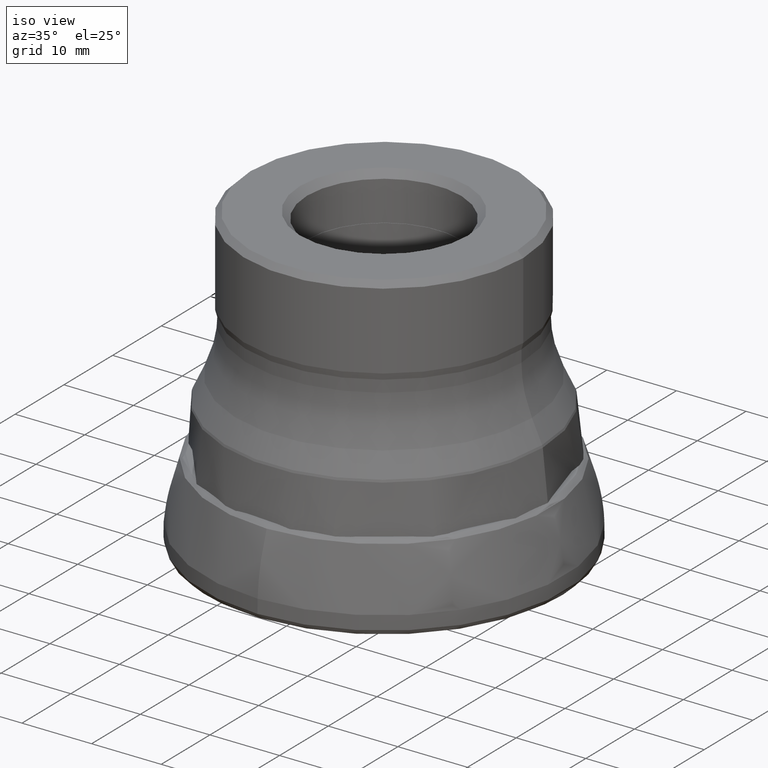
[diagram: clean part render]
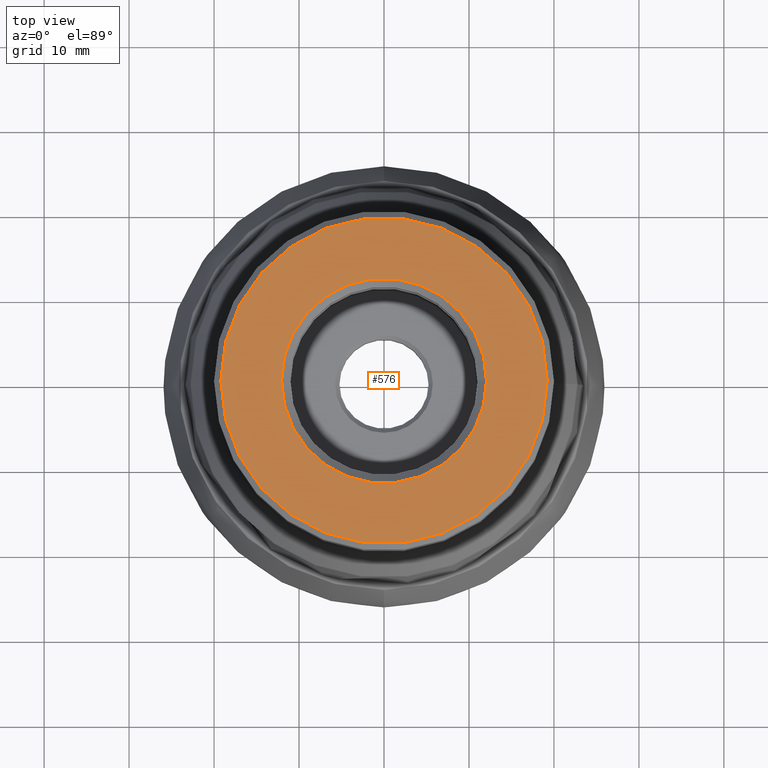
[diagram: tour spotlight — one face highlighted and labeled with its STEP entity id]
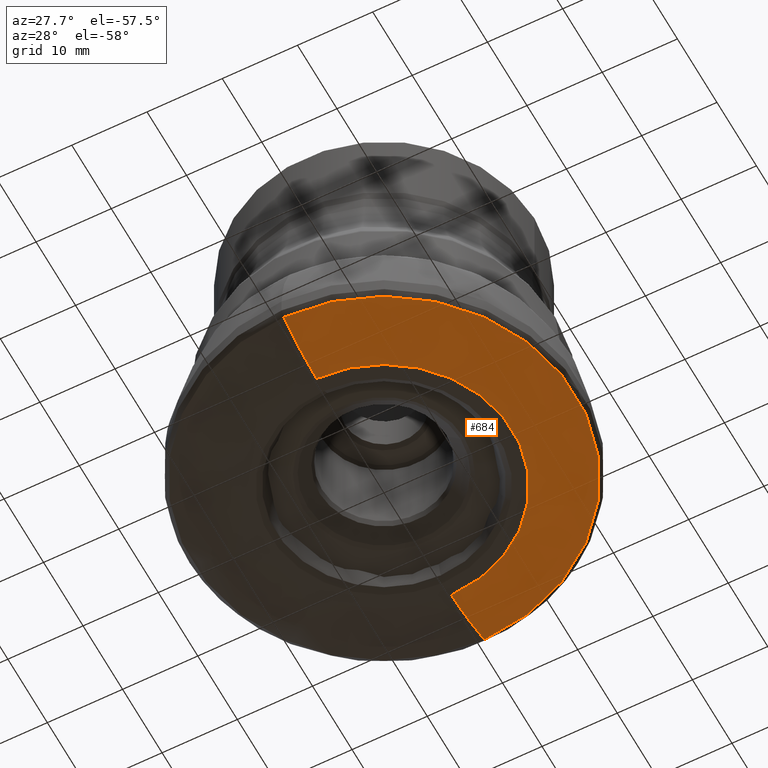
[diagram: tour spotlight — one face highlighted and labeled with its STEP entity id]
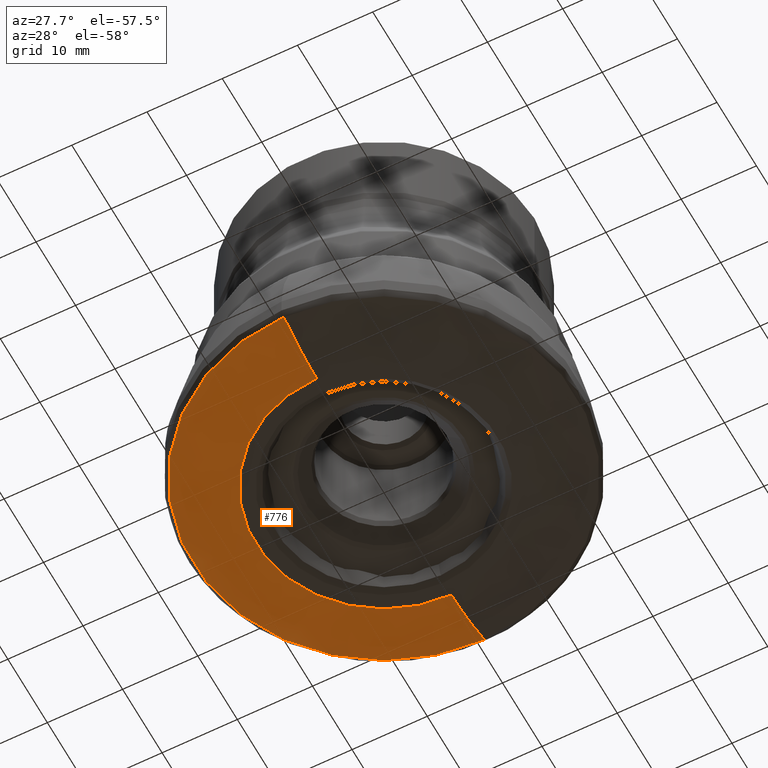
[diagram: tour spotlight — one face highlighted and labeled with its STEP entity id]
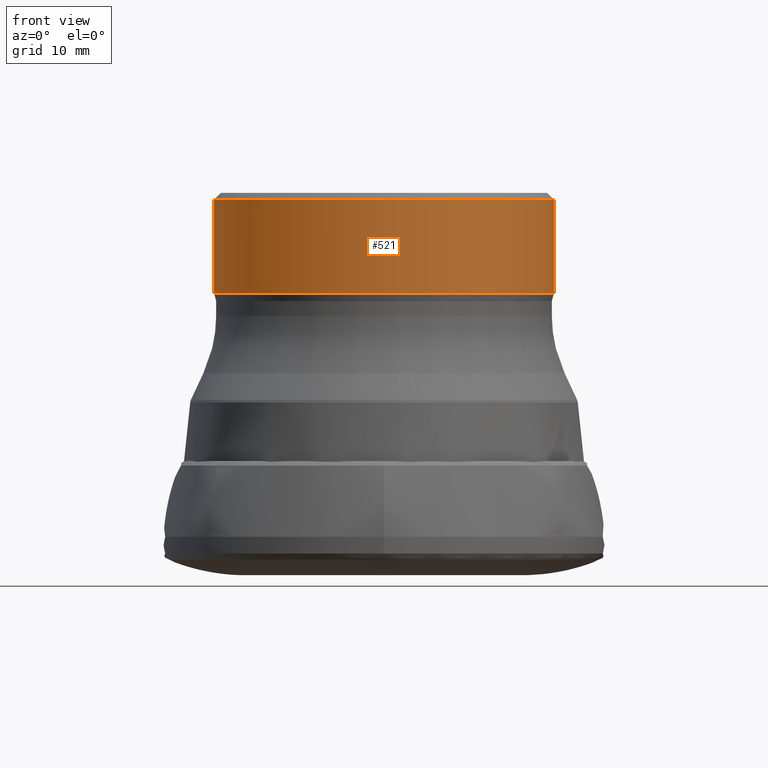
[diagram: tour spotlight — one face highlighted and labeled with its STEP entity id]
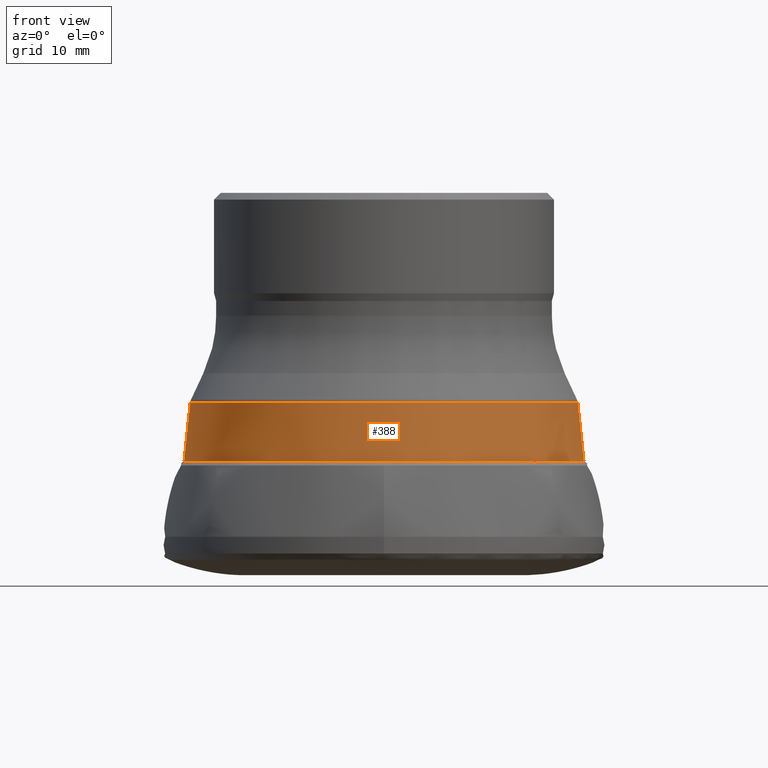
[diagram: tour spotlight — one face highlighted and labeled with its STEP entity id]
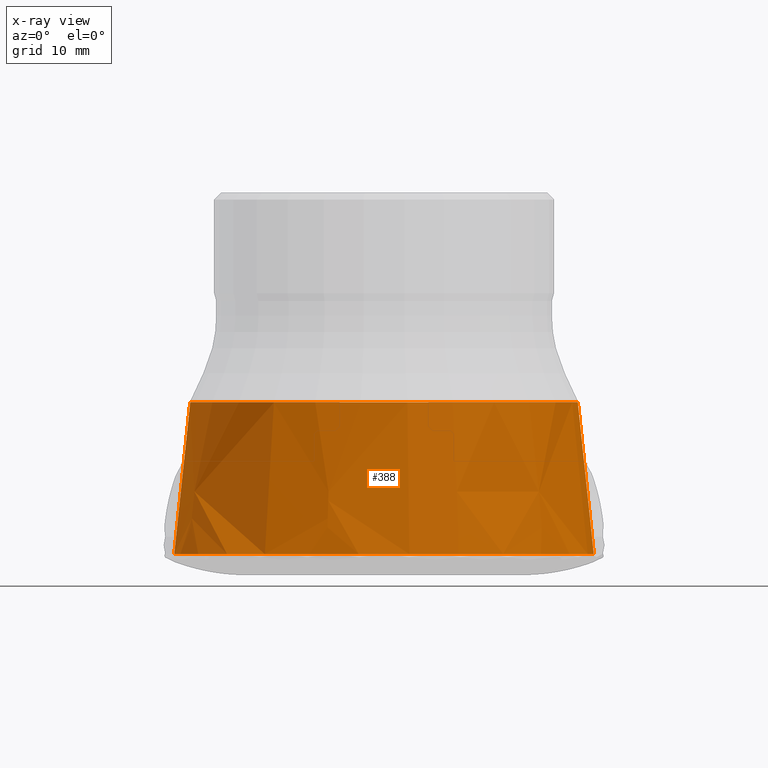
[diagram: x-ray of the same camera — body ghosted, this tour face saturated]
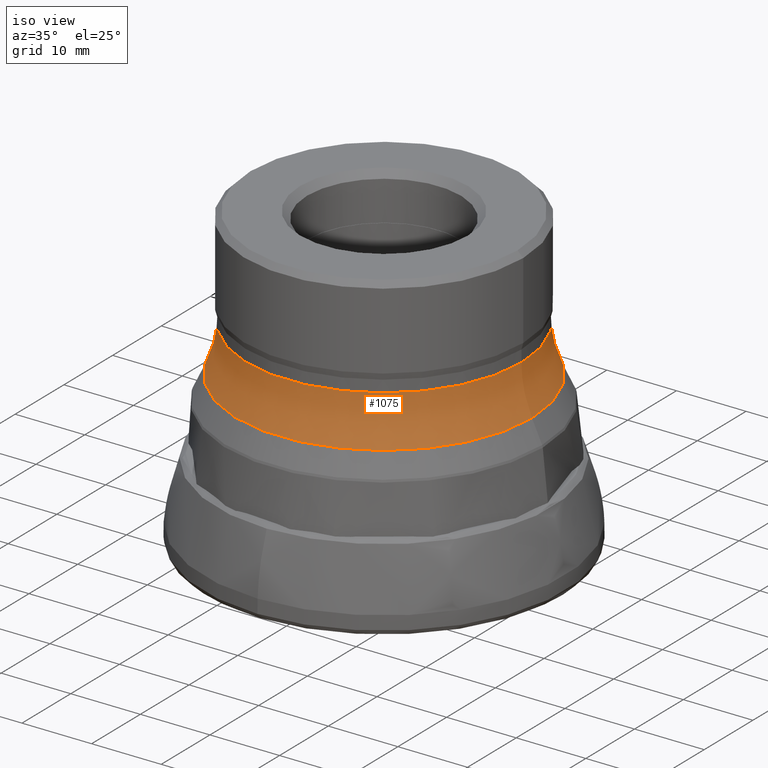
[diagram: tour spotlight — one face highlighted and labeled with its STEP entity id]
A machine part: a face-by-face anatomy tour. The part has 54 B-rep faces; the first image is the clean iso view, then the 6 largest visible faces are spotlighted one at a time (largest first), each with its STEP entity span.

Face 1 — top view, entity #576. In plain terms, the highlighted planar face has unit normal (0, 0, -1).
Definition (entity closure, byte-faithful):
#19 = FACE_OUTER_BOUND ( 'NONE', #937, .T. ) ;
#227 = CIRCLE ( 'NONE', #1157, 19.20000000000002400 ) ;
#475 = FACE_BOUND ( 'NONE', #1550, .T. ) ;
#576 = ADVANCED_FACE ( 'NONE', ( #19, #475 ), #2736, .F. ) ;
#672 = CARTESIAN_POINT ( 'NONE',  ( -6.880664631269963700, -17.92474418874622100, -45.00000000002415100 ) ) ;
#768 = VERTEX_POINT ( 'NONE', #2556 ) ;
#820 = DIRECTION ( 'NONE',  ( 1.000000000000000000, 0.0000000000000000000, 0.0000000000000000000 ) ) ;
#853 = AXIS2_PLACEMENT_3D ( 'NONE', #973, #2617, #1068 ) ;
#937 = EDGE_LOOP ( 'NONE', ( #1434 ) ) ;
#960 = CIRCLE ( 'NONE', #853, 12.06000000000001100 ) ;
#973 = CARTESIAN_POINT ( 'NONE',  ( 0.0000000000000000000, 0.0000000000000000000, -45.00000000001863800 ) ) ;
#1068 = DIRECTION ( 'NONE',  ( 1.000000000000000000, 0.0000000000000000000, 0.0000000000000000000 ) ) ;
#1146 = ORIENTED_EDGE ( 'NONE', *, *, #1321, .T. ) ;
#1157 = AXIS2_PLACEMENT_3D ( 'NONE', #2096, #1992, #820 ) ;
#1158 = DIRECTION ( 'NONE',  ( 0.0000000000000000000, -0.0000000000000000000, 1.000000000000000000 ) ) ;
#1294 = VERTEX_POINT ( 'NONE', #2402 ) ;
#1321 = EDGE_CURVE ( 'NONE', #768, #768, #960, .T. ) ;
#1434 = ORIENTED_EDGE ( 'NONE', *, *, #1830, .F. ) ;
#1550 = EDGE_LOOP ( 'NONE', ( #1146 ) ) ;
#1830 = EDGE_CURVE ( 'NONE', #1294, #1294, #227, .T. ) ;
#1926 = DIRECTION ( 'NONE',  ( 1.000000000000000000, 0.0000000000000000000, 0.0000000000000000000 ) ) ;
#1992 = DIRECTION ( 'NONE',  ( -0.0000000000000000000, -0.0000000000000000000, 1.000000000000000000 ) ) ;
#2096 = CARTESIAN_POINT ( 'NONE',  ( 0.0000000000000000000, 0.0000000000000000000, -45.00000000002967200 ) ) ;
#2402 = CARTESIAN_POINT ( 'NONE',  ( 19.20000000000002400, 0.0000000000000000000, -45.00000000002967200 ) ) ;
#2556 = CARTESIAN_POINT ( 'NONE',  ( 12.06000000000001100, 0.0000000000000000000, -45.00000000001863800 ) ) ;
#2617 = DIRECTION ( 'NONE',  ( -0.0000000000000000000, -0.0000000000000000000, 1.000000000000000000 ) ) ;
#2736 = PLANE ( 'NONE',  #2829 ) ;
#2829 = AXIS2_PLACEMENT_3D ( 'NONE', #672, #1158, #1926 ) ;

Face 2 — auxiliary view, entity #684. In plain terms, the highlighted face is a freeform B-spline surface patch.
Definition (entity closure, byte-faithful):
#1 = CARTESIAN_POINT ( 'NONE',  ( 1.370950851718324200E-013, -19.63279649337284700, -0.2459065447410783700 ) ) ;
#60 = CARTESIAN_POINT ( 'NONE',  ( 0.0000000000000000000, 2.279984574282181800E-016, -1.825446698515149200 ) ) ;
#66 = CARTESIAN_POINT ( 'NONE',  ( -1.644357591758712900E-013, 23.54813662420366400, -1.147165629889494600 ) ) ;
#76 = CARTESIAN_POINT ( 'NONE',  ( -1.709102970950207000E-013, 24.47532730500717300, -1.461591362722479000 ) ) ;
#100 = CARTESIAN_POINT ( 'NONE',  ( 0.0000000000000000000, -17.06473956484177300, -0.009049119679068086100 ) ) ;
#103 = CARTESIAN_POINT ( 'NONE',  ( 49.82352315549189100, -24.91176157774575400, -1.623481009344079500 ) ) ;
#108 = CARTESIAN_POINT ( 'NONE',  ( 9.663665549875960600E-015, -21.76064028472723400, -0.6529907480222030300 ) ) ;
#132 = FACE_OUTER_BOUND ( 'NONE', #1784, .T. ) ;
#133 = DIRECTION ( 'NONE',  ( -0.0000000000000000000, 1.249000902703301100E-016, -1.000000000000000000 ) ) ;
#178 = CARTESIAN_POINT ( 'NONE',  ( 7.901079232139477100E-015, -17.79164874284405300, -0.04543130397592708100 ) ) ;
#190 = AXIS2_PLACEMENT_3D ( 'NONE', #60, #2390, #2315 ) ;
#215 = CARTESIAN_POINT ( 'NONE',  ( 1.753532073818608000E-013, -25.11157734555761700, -1.700635789874140700 ) ) ;
#259 = CARTESIAN_POINT ( 'NONE',  ( 1.128764817942034700E-014, -25.41752406736338100, -1.825446698514025900 ) ) ;
#279 = CARTESIAN_POINT ( 'NONE',  ( 34.60026043831063400, -17.30013021915518900, -0.01859258366382140000 ) ) ;
#296 = CARTESIAN_POINT ( 'NONE',  ( -1.739579013328175000E-013, 24.91176157774577500, -1.623481009344073000 ) ) ;
#305 = CARTESIAN_POINT ( 'NONE',  ( 0.0000000000000000000, 25.41752406736337000, -1.825446698514024700 ) ) ;
#340 = CARTESIAN_POINT ( 'NONE',  ( -1.208061636394731200E-013, 17.30013021915520400, -0.01859258366381707700 ) ) ;
#355 = CARTESIAN_POINT ( 'NONE',  ( 45.28458376937887700, 22.64229188468968300, -0.8787469598798856000 ) ) ;
#405 = CARTESIAN_POINT ( 'NONE',  ( 1.025506696739786800E-014, -23.09235788651625400, -1.007412632239783600 ) ) ;
#410 = CARTESIAN_POINT ( 'NONE',  ( 0.0000000000000000000, 25.41752406736337000, -1.825446698514024700 ) ) ;
#414 = CARTESIAN_POINT ( 'NONE',  ( 50.49510393123697600, 25.24755196561876500, -1.756106611007898400 ) ) ;
#431 = CARTESIAN_POINT ( 'NONE',  ( 43.52128056945476700, -21.76064028472721300, -0.6529907480222030300 ) ) ;
#445 = VERTEX_POINT ( 'NONE', #305 ) ;
#451 = EDGE_CURVE ( 'NONE', #445, #920, #1311, .T. ) ;
#453 = CARTESIAN_POINT ( 'NONE',  ( 1.086922876370230100E-014, -24.47532730500717300, -1.461591362722485000 ) ) ;
#496 = CARTESIAN_POINT ( 'NONE',  ( 49.82352315549171400, 24.91176157774612300, -1.623481009344072800 ) ) ;
#513 = CARTESIAN_POINT ( 'NONE',  ( 50.49510393123716800, -25.24755196561839200, -1.756106611007904700 ) ) ;
#520 = CARTESIAN_POINT ( 'NONE',  ( -1.519537389508065200E-013, 21.76064028472723400, -0.6529907480221975900 ) ) ;
#540 = CARTESIAN_POINT ( 'NONE',  ( -1.242384191457838100E-013, 17.79164874284405300, -0.04543130397592264100 ) ) ;
#554 = CARTESIAN_POINT ( 'NONE',  ( 1.121216540305987200E-014, -25.24755196561841000, -1.756106611007904700 ) ) ;
#584 = CARTESIAN_POINT ( 'NONE',  ( -1.774896219215909000E-013, 25.41752406736338100, -1.825446698514019400 ) ) ;
#601 = CARTESIAN_POINT ( 'NONE',  ( 0.0000000000000000000, -25.41752406736291500, -1.825446698515152300 ) ) ;
#606 = CARTESIAN_POINT ( 'NONE',  ( 34.12947912968378000, -17.06473956484175900, -0.009049119679068086100 ) ) ;
#634 = CARTESIAN_POINT ( 'NONE',  ( 1.493350026232587100E-013, -21.38562233770084100, -0.5653009288615821200 ) ) ;
#649 = CIRCLE ( 'NONE', #1282, 17.06473956484177300 ) ;
#650 = CARTESIAN_POINT ( 'NONE',  ( 48.01857483741737600, -24.00928741870849900, -1.298351888340075100 ) ) ;
#674 = CARTESIAN_POINT ( 'NONE',  ( 0.0000000000000000000, 17.06473956484177300, -0.009049119679069319400 ) ) ;
#684 = ADVANCED_FACE ( 'NONE', ( #132 ), #2486, .F. ) ;
#688 = CARTESIAN_POINT ( 'NONE',  ( 43.52128056945460300, 21.76064028472754000, -0.6529907480221975900 ) ) ;
#721 = CARTESIAN_POINT ( 'NONE',  ( 34.12947912968365900, 17.06473956484201100, -0.009049119679063823800 ) ) ;
#723 = CARTESIAN_POINT ( 'NONE',  ( -1.478105198601103100E-013, 21.16730772920095700, -0.5181824781637173200 ) ) ;
#747 = CARTESIAN_POINT ( 'NONE',  ( -1.304772478764151900E-013, 18.68508452627839500, -0.1237868047146283700 ) ) ;
#760 = CARTESIAN_POINT ( 'NONE',  ( 44.39656674545712200, 22.19828337272879500, -0.7607428730071623700 ) ) ;
#778 = CARTESIAN_POINT ( 'NONE',  ( 42.33461545840219700, -21.16730772920093900, -0.5181824781637226500 ) ) ;
#787 = CARTESIAN_POINT ( 'NONE',  ( 47.09627324840765500, -23.54813662420364700, -1.147165629889500300 ) ) ;
#792 = CARTESIAN_POINT ( 'NONE',  ( -1.364408685296694000E-013, 19.53910894664522100, -0.2291270393461749300 ) ) ;
#823 = CARTESIAN_POINT ( 'NONE',  ( -1.550097843004666700E-013, 22.19828337272849000, -0.7607428730071623700 ) ) ;
#827 = CARTESIAN_POINT ( 'NONE',  ( 35.58329748568822000, 17.79164874284430200, -0.04543130397592263400 ) ) ;
#844 = ORIENTED_EDGE ( 'NONE', *, *, #2677, .T. ) ;
#875 = CARTESIAN_POINT ( 'NONE',  ( 37.37016905255690300, 18.68508452627865400, -0.1237868047146283400 ) ) ;
#899 = CARTESIAN_POINT ( 'NONE',  ( 1.045747338688393700E-014, -23.54813662420366400, -1.147165629889500500 ) ) ;
#904 = CARTESIAN_POINT ( 'NONE',  ( 39.07821789329057100, 19.53910894664549500, -0.2291270393461749300 ) ) ;
#907 = CARTESIAN_POINT ( 'NONE',  ( 47.09627324840747800, 23.54813662420399500, -1.147165629889494300 ) ) ;
#920 = VERTEX_POINT ( 'NONE', #601 ) ;
#945 = CARTESIAN_POINT ( 'NONE',  ( 1.711752355906022000E-013, -24.51326800551071700, -1.470584862123138300 ) ) ;
#947 = CARTESIAN_POINT ( 'NONE',  ( 1.296645926521224600E-013, -18.56870767281338200, -0.1142350426656163800 ) ) ;
#959 = CARTESIAN_POINT ( 'NONE',  ( 34.60026043831051400, 17.30013021915544500, -0.01859258366381707400 ) ) ;
#979 = CARTESIAN_POINT ( 'NONE',  ( 46.18471577303282100, -23.09235788651623300, -1.007412632239783600 ) ) ;
#991 = CARTESIAN_POINT ( 'NONE',  ( -1.364408685296694000E-013, 19.53910894664522100, -0.2291270393461749300 ) ) ;
#997 = B_SPLINE_CURVE_WITH_KNOTS ( 'NONE', 3,
 ( #1826, #215, #945, #1045, #1785, #1873, #634, #2488, #2240, #1, #1686, #947, #2209, #1338, #2813, #2341 ),
 .UNSPECIFIED., .F., .F.,
 ( 4, 1, 1, 1, 1, 1, 1, 1, 1, 1, 1, 1, 1, 4 ),
 ( 0.0000000000000000000, 0.1066297943047782600, 0.2100626697053024100, 0.3102502206601077700, 0.4071554126363848800, 0.5007517338078180100, 0.5688737691072964800, 0.6353653447593198300, 0.7002226151707037200, 0.7634438614238479000, 0.8250293354805942100, 0.8849811064084499600, 0.9433029096225515900, 1.000000000000000000 ),
 .UNSPECIFIED. ) ;
#1009 = CARTESIAN_POINT ( 'NONE',  ( -1.304772478764151900E-013, 18.68508452627839500, -0.1237868047146283700 ) ) ;
#1033 = CARTESIAN_POINT ( 'NONE',  ( 48.01857483741720500, 24.00928741870885800, -1.298351888340069300 ) ) ;
#1036 = CARTESIAN_POINT ( 'NONE',  ( 9.070309673353269900E-015, -20.42452163252439600, -0.3709892248021832200 ) ) ;
#1045 = CARTESIAN_POINT ( 'NONE',  ( 1.657304023507849200E-013, -23.73353689550264200, -1.203401543600622000 ) ) ;
#1070 = CARTESIAN_POINT ( 'NONE',  ( 39.07821789329071300, -19.53910894664520000, -0.2291270393461798100 ) ) ;
#1081 = CARTESIAN_POINT ( 'NONE',  ( -1.709102970950207000E-013, 24.47532730500717300, -1.461591362722479000 ) ) ;
#1126 = CARTESIAN_POINT ( 'NONE',  ( 8.297844423256594500E-015, -18.68508452627839500, -0.1237868047146330300 ) ) ;
#1217 = CARTESIAN_POINT ( 'NONE',  ( 9.400172964113971300E-015, -21.16730772920095700, -0.5181824781637226500 ) ) ;
#1222 = CARTESIAN_POINT ( 'NONE',  ( -1.426236722695136300E-013, 20.42452163252439600, -0.3709892248021781100 ) ) ;
#1229 = CARTESIAN_POINT ( 'NONE',  ( 37.37016905255704600, -18.68508452627837700, -0.1237868047146330300 ) ) ;
#1235 = CARTESIAN_POINT ( 'NONE',  ( -1.242384191457838100E-013, 17.79164874284405300, -0.04543130397592264100 ) ) ;
#1245 = ORIENTED_EDGE ( 'NONE', *, *, #2117, .T. ) ;
#1282 = AXIS2_PLACEMENT_3D ( 'NONE', #2184, #133, #1869 ) ;
#1303 = CARTESIAN_POINT ( 'NONE',  ( -1.763027130788578700E-013, 25.24755196561841000, -1.756106611007898400 ) ) ;
#1311 = CIRCLE ( 'NONE', #190, 25.41752406736291500 ) ;
#1338 = CARTESIAN_POINT ( 'NONE',  ( 1.222565573655246300E-013, -17.50783485585420300, -0.02961630286068967600 ) ) ;
#1444 = CARTESIAN_POINT ( 'NONE',  ( 50.83504813472711700, -25.41752406736335600, -1.825446698514025900 ) ) ;
#1555 = CARTESIAN_POINT ( 'NONE',  ( -1.763027130788578700E-013, 25.24755196561841000, -1.756106611007898400 ) ) ;
#1621 = CARTESIAN_POINT ( 'NONE',  ( 35.58329748568834800, -17.79164874284403600, -0.04543130397592708800 ) ) ;
#1671 = CARTESIAN_POINT ( 'NONE',  ( 0.0000000000000000000, 17.06473956484177300, -0.009049119679069319400 ) ) ;
#1686 = CARTESIAN_POINT ( 'NONE',  ( 1.333361233171898000E-013, -19.09449176110581100, -0.1734703796785660200 ) ) ;
#1712 = CARTESIAN_POINT ( 'NONE',  ( 45.28458376937904000, -22.64229188468934600, -0.8787469598798910400 ) ) ;
#1784 = EDGE_LOOP ( 'NONE', ( #2181, #844, #1245, #2628 ) ) ;
#1785 = CARTESIAN_POINT ( 'NONE',  ( 1.599847819308279800E-013, -22.91073134932425100, -0.9508105245381148800 ) ) ;
#1826 = CARTESIAN_POINT ( 'NONE',  ( 0.0000000000000000000, -25.41752406736291500, -1.825446698515152300 ) ) ;
#1863 = CARTESIAN_POINT ( 'NONE',  ( -1.644357591758712900E-013, 23.54813662420366400, -1.147165629889494600 ) ) ;
#1869 = DIRECTION ( 'NONE',  ( 0.0000000000000000000, 1.000000000000000000, 1.248852868333581300E-016 ) ) ;
#1873 = CARTESIAN_POINT ( 'NONE',  ( 1.543709199596771800E-013, -22.10679436293742500, -0.7343252858114014400 ) ) ;
#1889 = CARTESIAN_POINT ( 'NONE',  ( -1.739579013328175000E-013, 24.91176157774577500, -1.623481009344073000 ) ) ;
#1898 = CARTESIAN_POINT ( 'NONE',  ( -1.581102791680645100E-013, 22.64229188468936700, -0.8787469598798854900 ) ) ;
#1936 = CARTESIAN_POINT ( 'NONE',  ( -1.426236722695136300E-013, 20.42452163252439600, -0.3709892248021781100 ) ) ;
#1962 = CARTESIAN_POINT ( 'NONE',  ( 48.95065461001469500, -24.47532730500715600, -1.461591362722484800 ) ) ;
#1999 = CARTESIAN_POINT ( 'NONE',  ( -1.581102791680645100E-013, 22.64229188468936700, -0.8787469598798854900 ) ) ;
#2026 = CARTESIAN_POINT ( 'NONE',  ( 1.106304451503427000E-014, -24.91176157774577500, -1.623481009344079200 ) ) ;
#2058 = CARTESIAN_POINT ( 'NONE',  ( -1.612530732613171200E-013, 23.09235788651625400, -1.007412632239777800 ) ) ;
#2082 = CARTESIAN_POINT ( 'NONE',  ( 8.677107453289972000E-015, -19.53910894664522100, -0.2291270393461798100 ) ) ;
#2117 = EDGE_CURVE ( 'NONE', #2156, #2660, #649, .T. ) ;
#2126 = CARTESIAN_POINT ( 'NONE',  ( 1.005519751226618100E-014, -22.64229188468936700, -0.8787469598798910400 ) ) ;
#2156 = VERTEX_POINT ( 'NONE', #674 ) ;
#2169 = CARTESIAN_POINT ( 'NONE',  ( 48.95065461001450300, 24.47532730500751800, -1.461591362722479000 ) ) ;
#2181 = ORIENTED_EDGE ( 'NONE', *, *, #451, .F. ) ;
#2184 = CARTESIAN_POINT ( 'NONE',  ( 0.0000000000000000000, 1.130235864782358400E-018, -0.009049119679065954100 ) ) ;
#2201 = CARTESIAN_POINT ( 'NONE',  ( 7.578266709647687400E-015, -17.06473956484177300, -0.009049119679068086100 ) ) ;
#2209 = CARTESIAN_POINT ( 'NONE',  ( 1.260826798660405400E-013, -18.05575737486495300, -0.06759526342461760800 ) ) ;
#2240 = CARTESIAN_POINT ( 'NONE',  ( 1.409388008046701500E-013, -20.18323844906597500, -0.3324908633834579600 ) ) ;
#2260 = CARTESIAN_POINT ( 'NONE',  ( 42.33461545840205500, 21.16730772920125100, -0.5181824781637174300 ) ) ;
#2303 = CARTESIAN_POINT ( 'NONE',  ( -1.550097843004666700E-013, 22.19828337272849000, -0.7607428730071623700 ) ) ;
#2309 = CARTESIAN_POINT ( 'NONE',  ( -1.519537389508065200E-013, 21.76064028472723400, -0.6529907480221975900 ) ) ;
#2311 = CARTESIAN_POINT ( 'NONE',  ( 40.84904326504906900, -20.42452163252437800, -0.3709892248021832700 ) ) ;
#2315 = DIRECTION ( 'NONE',  ( 0.0000000000000000000, 1.000000000000000000, 1.279670871496483000E-016 ) ) ;
#2341 = CARTESIAN_POINT ( 'NONE',  ( 0.0000000000000000000, -17.06473956484177300, -0.009049119679068086100 ) ) ;
#2390 = DIRECTION ( 'NONE',  ( -0.0000000000000000000, 1.249000902703301100E-016, -1.000000000000000000 ) ) ;
#2394 = CARTESIAN_POINT ( 'NONE',  ( 7.682801159327831300E-015, -17.30013021915520400, -0.01859258366382140000 ) ) ;
#2456 = CARTESIAN_POINT ( 'NONE',  ( 46.18471577303265700, 23.09235788651657700, -1.007412632239777600 ) ) ;
#2475 = CARTESIAN_POINT ( 'NONE',  ( 44.39656674545727800, -22.19828337272846900, -0.7607428730071679200 ) ) ;
#2486 =( BOUNDED_SURFACE ( )  B_SPLINE_SURFACE ( 3, 3, ( 
 ( #2489, #721, #606, #2201 ),
 ( #340, #959, #279, #2394 ),
 ( #540, #827, #1621, #178 ),
 ( #747, #875, #1229, #1126 ),
 ( #991, #904, #1070, #2082 ),
 ( #1936, #2679, #2311, #1036 ),
 ( #723, #2260, #778, #1217 ),
 ( #520, #688, #431, #108 ),
 ( #823, #760, #2475, #2724 ),
 ( #1999, #355, #1712, #2126 ),
 ( #2058, #2456, #979, #405 ),
 ( #1863, #907, #787, #899 ),
 ( #2772, #1033, #650, #2908 ),
 ( #1081, #2169, #1962, #453 ),
 ( #296, #496, #103, #2026 ),
 ( #1555, #414, #513, #554 ),
 ( #584, #2658, #1444, #259 ) ),
 .UNSPECIFIED., .F., .F., .F. ) 
 B_SPLINE_SURFACE_WITH_KNOTS ( ( 4, 1, 1, 1, 1, 1, 1, 1, 1, 1, 1, 1, 1, 1, 4 ),
 ( 4, 4 ),
 ( 0.0000000000000000000, 0.09175054995868470200, 0.1876920681939290300, 0.2878404590191130400, 0.3922003690837996300, 0.5007635699573029800, 0.5522093955806985900, 0.6046727386054271400, 0.6581502022585477000, 0.7126374725667000700, 0.7681292723181277800, 0.8246193157243626400, 0.8821002640873619700, 0.9405636827967723800, 1.000000000000000000 ),
 ( 0.0000000000000000000, 1.000000000000000000 ),
 .UNSPECIFIED. ) 
 GEOMETRIC_REPRESENTATION_ITEM ( )  RATIONAL_B_SPLINE_SURFACE ( (
 ( 1.000000000000000000, 0.3333333333333311500, 0.3333333333333311500, 1.000000000000000000),
 ( 1.000000000000000000, 0.3333333333333311500, 0.3333333333333311500, 1.000000000000000000),
 ( 1.000000000000000000, 0.3333333333333311500, 0.3333333333333311500, 1.000000000000000000),
 ( 1.000000000000000000, 0.3333333333333311500, 0.3333333333333311500, 1.000000000000000000),
 ( 1.000000000000000000, 0.3333333333333311500, 0.3333333333333311500, 1.000000000000000000),
 ( 1.000000000000000000, 0.3333333333333311500, 0.3333333333333311500, 1.000000000000000000),
 ( 1.000000000000000000, 0.3333333333333311500, 0.3333333333333311500, 1.000000000000000000),
 ( 1.000000000000000000, 0.3333333333333311500, 0.3333333333333311500, 1.000000000000000000),
 ( 1.000000000000000000, 0.3333333333333311500, 0.3333333333333311500, 1.000000000000000000),
 ( 1.000000000000000000, 0.3333333333333311500, 0.3333333333333311500, 1.000000000000000000),
 ( 1.000000000000000000, 0.3333333333333311500, 0.3333333333333311500, 1.000000000000000000),
 ( 1.000000000000000000, 0.3333333333333311500, 0.3333333333333311500, 1.000000000000000000),
 ( 1.000000000000000000, 0.3333333333333311500, 0.3333333333333311500, 1.000000000000000000),
 ( 1.000000000000000000, 0.3333333333333311500, 0.3333333333333311500, 1.000000000000000000),
 ( 1.000000000000000000, 0.3333333333333311500, 0.3333333333333311500, 1.000000000000000000),
 ( 1.000000000000000000, 0.3333333333333311500, 0.3333333333333311500, 1.000000000000000000),
 ( 1.000000000000000000, 0.3333333333333311500, 0.3333333333333311500, 1.000000000000000000) ) ) 
 REPRESENTATION_ITEM ( '' )  SURFACE ( )  );
#2488 = CARTESIAN_POINT ( 'NONE',  ( 1.448642051060413000E-013, -20.74537868703611200, -0.4340896472914155300 ) ) ;
#2489 = CARTESIAN_POINT ( 'NONE',  ( -1.191624394857262900E-013, 17.06473956484177300, -0.009049119679063823800 ) ) ;
#2553 = CARTESIAN_POINT ( 'NONE',  ( -1.478105198601103100E-013, 21.16730772920095700, -0.5181824781637173200 ) ) ;
#2565 = CARTESIAN_POINT ( 'NONE',  ( -1.208061636394731200E-013, 17.30013021915520400, -0.01859258366381707700 ) ) ;
#2591 = EDGE_CURVE ( 'NONE', #920, #2660, #997, .T. ) ;
#2628 = ORIENTED_EDGE ( 'NONE', *, *, #2591, .F. ) ;
#2658 = CARTESIAN_POINT ( 'NONE',  ( 50.83504813472691800, 25.41752406736373600, -1.825446698514019400 ) ) ;
#2660 = VERTEX_POINT ( 'NONE', #100 ) ;
#2677 = EDGE_CURVE ( 'NONE', #445, #2156, #2702, .T. ) ;
#2679 = CARTESIAN_POINT ( 'NONE',  ( 40.84904326504891300, 20.42452163252468000, -0.3709892248021781100 ) ) ;
#2702 = B_SPLINE_CURVE_WITH_KNOTS ( 'NONE', 3,
 ( #410, #1303, #1889, #76, #2803, #66, #2777, #1898, #2303, #2309, #2553, #1222, #792, #1009, #1235, #2565, #1671 ),
 .UNSPECIFIED., .F., .F.,
 ( 4, 1, 1, 1, 1, 1, 1, 1, 1, 1, 1, 1, 1, 1, 4 ),
 ( 0.0000000000000000000, 0.05943631720322761800, 0.1178997359126380300, 0.1753806842756373600, 0.2318707276818722200, 0.2873625274332999300, 0.3418497977414523000, 0.3953272613945728600, 0.4477906044193014100, 0.4992364300426970200, 0.6077996309162003700, 0.7121595409808869600, 0.8123079318060709700, 0.9082494500413153000, 1.000000000000000000 ),
 .UNSPECIFIED. ) ;
#2724 = CARTESIAN_POINT ( 'NONE',  ( 9.858018123022782800E-015, -22.19828337272849000, -0.7607428730071679200 ) ) ;
#2772 = CARTESIAN_POINT ( 'NONE',  ( -1.676559579626840700E-013, 24.00928741870852400, -1.298351888340069100 ) ) ;
#2777 = CARTESIAN_POINT ( 'NONE',  ( -1.612530732613171200E-013, 23.09235788651625400, -1.007412632239777800 ) ) ;
#2803 = CARTESIAN_POINT ( 'NONE',  ( -1.676559579626840700E-013, 24.00928741870852400, -1.298351888340069100 ) ) ;
#2813 = CARTESIAN_POINT ( 'NONE',  ( 1.201753855283129100E-013, -17.20979920347101100, -0.01493028535634699300 ) ) ;
#2908 = CARTESIAN_POINT ( 'NONE',  ( 1.066226547883731000E-014, -24.00928741870852400, -1.298351888340075300 ) ) ;

Face 3 — auxiliary view, entity #776. In plain terms, the highlighted face is a freeform B-spline surface patch.
Definition (entity closure, byte-faithful):
#1 = CARTESIAN_POINT ( 'NONE',  ( 1.370950851718324200E-013, -19.63279649337284700, -0.2459065447410783700 ) ) ;
#66 = CARTESIAN_POINT ( 'NONE',  ( -1.644357591758712900E-013, 23.54813662420366400, -1.147165629889494600 ) ) ;
#73 = CARTESIAN_POINT ( 'NONE',  ( -49.02653601102177600, 24.51326800551070000, -1.470584862123132100 ) ) ;
#76 = CARTESIAN_POINT ( 'NONE',  ( -1.709102970950207000E-013, 24.47532730500717300, -1.461591362722479000 ) ) ;
#100 = CARTESIAN_POINT ( 'NONE',  ( 0.0000000000000000000, -17.06473956484177300, -0.009049119679068086100 ) ) ;
#102 = CARTESIAN_POINT ( 'NONE',  ( -1.017440858200846600E-014, 22.91073134932425100, -0.9508105245381091000 ) ) ;
#142 = CARTESIAN_POINT ( 'NONE',  ( -41.49075737407235900, -20.74537868703640000, -0.4340896472914155300 ) ) ;
#215 = CARTESIAN_POINT ( 'NONE',  ( 1.753532073818608000E-013, -25.11157734555761700, -1.700635789874140700 ) ) ;
#239 = CARTESIAN_POINT ( 'NONE',  ( -37.13741534562701900, 18.56870767281336400, -0.1142350426656117400 ) ) ;
#277 = CARTESIAN_POINT ( 'NONE',  ( -42.77124467540181000, -21.38562233770114000, -0.5653009288615820100 ) ) ;
#289 = CARTESIAN_POINT ( 'NONE',  ( -9.497124126101423400E-015, 21.38562233770084100, -0.5653009288615767900 ) ) ;
#305 = CARTESIAN_POINT ( 'NONE',  ( 0.0000000000000000000, 25.41752406736337000, -1.825446698514024700 ) ) ;
#339 = CARTESIAN_POINT ( 'NONE',  ( -1.088607781941008100E-014, 24.51326800551071700, -1.470584862123132300 ) ) ;
#354 = CARTESIAN_POINT ( 'NONE',  ( 1.543709199596771800E-013, -22.10679436293742500, -0.7343252858114014400 ) ) ;
#364 = CARTESIAN_POINT ( 'NONE',  ( -8.018367025848203700E-015, 18.05575737486495300, -0.06759526342461308300 ) ) ;
#404 = CARTESIAN_POINT ( 'NONE',  ( -45.82146269864864500, -22.91073134932456800, -0.9508105245381147700 ) ) ;
#410 = CARTESIAN_POINT ( 'NONE',  ( 0.0000000000000000000, 25.41752406736337000, -1.825446698514024700 ) ) ;
#413 = CARTESIAN_POINT ( 'NONE',  ( -1.053980764687106400E-014, 23.73353689550264200, -1.203401543600616000 ) ) ;
#443 = CARTESIAN_POINT ( 'NONE',  ( -47.46707379100543300, -23.73353689550297200, -1.203401543600622000 ) ) ;
#445 = VERTEX_POINT ( 'NONE', #305 ) ;
#463 = EDGE_CURVE ( 'NONE', #920, #445, #2624, .T. ) ;
#480 = CARTESIAN_POINT ( 'NONE',  ( -34.12947912968365200, -17.06473956484200700, -0.009049119679071770600 ) ) ;
#494 = CARTESIAN_POINT ( 'NONE',  ( -37.13741534562688400, -18.56870767281364100, -0.1142350426656163900 ) ) ;
#499 = CARTESIAN_POINT ( 'NONE',  ( 1.201753855283129100E-013, -17.20979920347101100, -0.01493028535634699300 ) ) ;
#591 = CARTESIAN_POINT ( 'NONE',  ( 1.711752355906022000E-013, -24.51326800551071700, -1.470584862123138300 ) ) ;
#601 = CARTESIAN_POINT ( 'NONE',  ( 0.0000000000000000000, -25.41752406736291500, -1.825446698515152300 ) ) ;
#629 = CARTESIAN_POINT ( 'NONE',  ( 1.493350026232587100E-013, -21.38562233770084100, -0.5653009288615821200 ) ) ;
#634 = CARTESIAN_POINT ( 'NONE',  ( 1.493350026232587100E-013, -21.38562233770084100, -0.5653009288615821200 ) ) ;
#637 = CARTESIAN_POINT ( 'NONE',  ( -40.36647689813208500, -20.18323844906625600, -0.3324908633834579600 ) ) ;
#674 = CARTESIAN_POINT ( 'NONE',  ( 0.0000000000000000000, 17.06473956484177300, -0.009049119679069319400 ) ) ;
#678 = CARTESIAN_POINT ( 'NONE',  ( -34.12947912968377300, 17.06473956484175500, -0.009049119679067508400 ) ) ;
#698 = CARTESIAN_POINT ( 'NONE',  ( -7.578266709647687400E-015, 17.06473956484176900, -0.009049119679067510100 ) ) ;
#735 = CARTESIAN_POINT ( 'NONE',  ( -34.41959840694213600, -17.20979920347125300, -0.01493028535634699500 ) ) ;
#776 = ADVANCED_FACE ( 'NONE', ( #2366 ), #2552, .T. ) ;
#781 = CARTESIAN_POINT ( 'NONE',  ( -1.128764817942034400E-014, 25.41752406736337000, -1.825446698514024700 ) ) ;
#792 = CARTESIAN_POINT ( 'NONE',  ( -1.364408685296694000E-013, 19.53910894664522100, -0.2291270393461749300 ) ) ;
#806 = CARTESIAN_POINT ( 'NONE',  ( -36.11151474973002700, -18.05575737486520500, -0.06759526342461759400 ) ) ;
#920 = VERTEX_POINT ( 'NONE', #601 ) ;
#926 = ORIENTED_EDGE ( 'NONE', *, *, #1880, .T. ) ;
#945 = CARTESIAN_POINT ( 'NONE',  ( 1.711752355906022000E-013, -24.51326800551071700, -1.470584862123138300 ) ) ;
#947 = CARTESIAN_POINT ( 'NONE',  ( 1.296645926521224600E-013, -18.56870767281338200, -0.1142350426656163800 ) ) ;
#997 = B_SPLINE_CURVE_WITH_KNOTS ( 'NONE', 3,
 ( #1826, #215, #945, #1045, #1785, #1873, #634, #2488, #2240, #1, #1686, #947, #2209, #1338, #2813, #2341 ),
 .UNSPECIFIED., .F., .F.,
 ( 4, 1, 1, 1, 1, 1, 1, 1, 1, 1, 1, 1, 1, 4 ),
 ( 0.0000000000000000000, 0.1066297943047782600, 0.2100626697053024100, 0.3102502206601077700, 0.4071554126363848800, 0.5007517338078180100, 0.5688737691072964800, 0.6353653447593198300, 0.7002226151707037200, 0.7634438614238479000, 0.8250293354805942100, 0.8849811064084499600, 0.9433029096225515900, 1.000000000000000000 ),
 .UNSPECIFIED. ) ;
#1009 = CARTESIAN_POINT ( 'NONE',  ( -1.304772478764151900E-013, 18.68508452627839500, -0.1237868047146283700 ) ) ;
#1015 = CARTESIAN_POINT ( 'NONE',  ( -50.83504813472689700, -25.41752406736372500, -1.825446698514031200 ) ) ;
#1032 = ORIENTED_EDGE ( 'NONE', *, *, #2591, .T. ) ;
#1035 = CARTESIAN_POINT ( 'NONE',  ( -42.77124467540198100, 21.38562233770082000, -0.5653009288615767900 ) ) ;
#1045 = CARTESIAN_POINT ( 'NONE',  ( 1.657304023507849200E-013, -23.73353689550264200, -1.203401543600622000 ) ) ;
#1072 = CARTESIAN_POINT ( 'NONE',  ( 0.0000000000000000000, 2.279984574280781600E-016, -1.825446698514027900 ) ) ;
#1151 = CARTESIAN_POINT ( 'NONE',  ( 1.448642051060413000E-013, -20.74537868703611200, -0.4340896472914155300 ) ) ;
#1185 = CARTESIAN_POINT ( 'NONE',  ( -35.01566971170865400, 17.50783485585418800, -0.02961630286068529800 ) ) ;
#1192 = CARTESIAN_POINT ( 'NONE',  ( -50.22315469111539000, -25.11157734555796100, -1.700635789874140700 ) ) ;
#1222 = CARTESIAN_POINT ( 'NONE',  ( -1.426236722695136300E-013, 20.42452163252439600, -0.3709892248021781100 ) ) ;
#1235 = CARTESIAN_POINT ( 'NONE',  ( -1.242384191457838100E-013, 17.79164874284405300, -0.04543130397592264100 ) ) ;
#1303 = CARTESIAN_POINT ( 'NONE',  ( -1.763027130788578700E-013, 25.24755196561841000, -1.756106611007898400 ) ) ;
#1330 = CARTESIAN_POINT ( 'NONE',  ( -40.36647689813222700, 20.18323844906595700, -0.3324908633834529100 ) ) ;
#1338 = CARTESIAN_POINT ( 'NONE',  ( 1.222565573655246300E-013, -17.50783485585420300, -0.02961630286068967600 ) ) ;
#1360 = CARTESIAN_POINT ( 'NONE',  ( -38.18898352221174300, -19.09449176110607700, -0.1734703796785659900 ) ) ;
#1367 = CARTESIAN_POINT ( 'NONE',  ( -50.22315469111557500, 25.11157734555759500, -1.700635789874134700 ) ) ;
#1391 = DIRECTION ( 'NONE',  ( 0.0000000000000000000, 1.000000000000000000, 1.279670871496460100E-016 ) ) ;
#1399 = CARTESIAN_POINT ( 'NONE',  ( -9.817388840954707300E-015, 22.10679436293742500, -0.7343252858113958900 ) ) ;
#1409 = EDGE_LOOP ( 'NONE', ( #926, #1732, #2490, #1032 ) ) ;
#1443 = CARTESIAN_POINT ( 'NONE',  ( 1.753532073818608000E-013, -25.11157734555761700, -1.700635789874140700 ) ) ;
#1517 = CARTESIAN_POINT ( 'NONE',  ( -36.11151474973015500, 18.05575737486493500, -0.06759526342461309700 ) ) ;
#1596 = CARTESIAN_POINT ( 'NONE',  ( 1.222565573655246300E-013, -17.50783485585420300, -0.02961630286068967600 ) ) ;
#1663 = CARTESIAN_POINT ( 'NONE',  ( -49.02653601102158400, -24.51326800551106200, -1.470584862123138300 ) ) ;
#1670 = CARTESIAN_POINT ( 'NONE',  ( 1.333361233171898000E-013, -19.09449176110581100, -0.1734703796785660200 ) ) ;
#1671 = CARTESIAN_POINT ( 'NONE',  ( 0.0000000000000000000, 17.06473956484177300, -0.009049119679069319400 ) ) ;
#1678 = CARTESIAN_POINT ( 'NONE',  ( 1.657304023507849200E-013, -23.73353689550264200, -1.203401543600622000 ) ) ;
#1686 = CARTESIAN_POINT ( 'NONE',  ( 1.333361233171898000E-013, -19.09449176110581100, -0.1734703796785660200 ) ) ;
#1694 = CARTESIAN_POINT ( 'NONE',  ( 1.191624394857262600E-013, -17.06473956484176900, -0.009049119679071772300 ) ) ;
#1732 = ORIENTED_EDGE ( 'NONE', *, *, #2677, .F. ) ;
#1738 = CARTESIAN_POINT ( 'NONE',  ( -7.642686129947692500E-015, 17.20979920347101100, -0.01493028535634269500 ) ) ;
#1785 = CARTESIAN_POINT ( 'NONE',  ( 1.599847819308279800E-013, -22.91073134932425100, -0.9508105245381148800 ) ) ;
#1798 = CARTESIAN_POINT ( 'NONE',  ( -35.01566971170851900, -17.50783485585444400, -0.02961630286068966900 ) ) ;
#1826 = CARTESIAN_POINT ( 'NONE',  ( 0.0000000000000000000, -25.41752406736291500, -1.825446698515152300 ) ) ;
#1873 = CARTESIAN_POINT ( 'NONE',  ( 1.543709199596771800E-013, -22.10679436293742500, -0.7343252858114014400 ) ) ;
#1880 = EDGE_CURVE ( 'NONE', #2660, #2156, #2476, .T. ) ;
#1889 = CARTESIAN_POINT ( 'NONE',  ( -1.739579013328175000E-013, 24.91176157774577500, -1.623481009344073000 ) ) ;
#1896 = CARTESIAN_POINT ( 'NONE',  ( -8.718713081889029500E-015, 19.63279649337284700, -0.2459065447410734900 ) ) ;
#1898 = CARTESIAN_POINT ( 'NONE',  ( -1.581102791680645100E-013, 22.64229188468936700, -0.8787469598798854900 ) ) ;
#1931 = CARTESIAN_POINT ( 'NONE',  ( -8.479657758678021200E-015, 19.09449176110581100, -0.1734703796785612400 ) ) ;
#1974 = CARTESIAN_POINT ( 'NONE',  ( -34.41959840694226400, 17.20979920347099700, -0.01493028535634269500 ) ) ;
#2036 = CARTESIAN_POINT ( 'NONE',  ( -50.83504813472709600, 25.41752406736334500, -1.825446698514024500 ) ) ;
#2103 = CARTESIAN_POINT ( 'NONE',  ( 1.599847819308279800E-013, -22.91073134932425100, -0.9508105245381148800 ) ) ;
#2122 = CARTESIAN_POINT ( 'NONE',  ( -38.18898352221189200, 19.09449176110579700, -0.1734703796785612400 ) ) ;
#2134 = CARTESIAN_POINT ( 'NONE',  ( 1.296645926521224600E-013, -18.56870767281338200, -0.1142350426656163800 ) ) ;
#2156 = VERTEX_POINT ( 'NONE', #674 ) ;
#2174 = CARTESIAN_POINT ( 'NONE',  ( 1.370950851718324200E-013, -19.63279649337284700, -0.2459065447410783700 ) ) ;
#2209 = CARTESIAN_POINT ( 'NONE',  ( 1.260826798660405400E-013, -18.05575737486495300, -0.06759526342461760800 ) ) ;
#2236 = CARTESIAN_POINT ( 'NONE',  ( -9.212798829166180700E-015, 20.74537868703611200, -0.4340896472914103100 ) ) ;
#2240 = CARTESIAN_POINT ( 'NONE',  ( 1.409388008046701500E-013, -20.18323844906597500, -0.3324908633834579600 ) ) ;
#2303 = CARTESIAN_POINT ( 'NONE',  ( -1.550097843004666700E-013, 22.19828337272849000, -0.7607428730071623700 ) ) ;
#2309 = CARTESIAN_POINT ( 'NONE',  ( -1.519537389508065200E-013, 21.76064028472723400, -0.6529907480221975900 ) ) ;
#2314 = CARTESIAN_POINT ( 'NONE',  ( 0.0000000000000000000, 1.130235864783044700E-018, -0.009049119679071449700 ) ) ;
#2334 = CARTESIAN_POINT ( 'NONE',  ( 1.260826798660405400E-013, -18.05575737486495300, -0.06759526342461760800 ) ) ;
#2341 = CARTESIAN_POINT ( 'NONE',  ( 0.0000000000000000000, -17.06473956484177300, -0.009049119679068086100 ) ) ;
#2346 = CARTESIAN_POINT ( 'NONE',  ( -44.21358872587515500, 22.10679436293740400, -0.7343252858113958900 ) ) ;
#2366 = FACE_OUTER_BOUND ( 'NONE', #1409, .T. ) ;
#2374 = CARTESIAN_POINT ( 'NONE',  ( -1.115178054147739600E-014, 25.11157734555761700, -1.700635789874134400 ) ) ;
#2392 = CARTESIAN_POINT ( 'NONE',  ( -7.775040547321685600E-015, 17.50783485585420300, -0.02961630286068530100 ) ) ;
#2466 = CARTESIAN_POINT ( 'NONE',  ( -45.82146269864880800, 22.91073134932423000, -0.9508105245381091000 ) ) ;
#2476 = CIRCLE ( 'NONE', #2492, 17.06473956484177300 ) ;
#2488 = CARTESIAN_POINT ( 'NONE',  ( 1.448642051060413000E-013, -20.74537868703611200, -0.4340896472914155300 ) ) ;
#2490 = ORIENTED_EDGE ( 'NONE', *, *, #463, .F. ) ;
#2492 = AXIS2_PLACEMENT_3D ( 'NONE', #2314, #2546, #2688 ) ;
#2546 = DIRECTION ( 'NONE',  ( -0.0000000000000000000, 1.249000902703301100E-016, -1.000000000000000000 ) ) ;
#2552 =( BOUNDED_SURFACE ( )  B_SPLINE_SURFACE ( 3, 3, ( 
 ( #2668, #1015, #2036, #781 ),
 ( #1443, #1192, #1367, #2374 ),
 ( #591, #1663, #73, #339 ),
 ( #1678, #443, #2866, #413 ),
 ( #2103, #404, #2466, #102 ),
 ( #354, #2632, #2346, #1399 ),
 ( #629, #277, #1035, #289 ),
 ( #1151, #142, #2560, #2236 ),
 ( #2921, #637, #1330, #2765 ),
 ( #2174, #2639, #2705, #1896 ),
 ( #1670, #1360, #2122, #1931 ),
 ( #2134, #494, #239, #2843 ),
 ( #2334, #806, #1517, #364 ),
 ( #1596, #1798, #1185, #2392 ),
 ( #499, #735, #1974, #1738 ),
 ( #1694, #480, #678, #698 ) ),
 .UNSPECIFIED., .F., .F., .T. ) 
 B_SPLINE_SURFACE_WITH_KNOTS ( ( 4, 1, 1, 1, 1, 1, 1, 1, 1, 1, 1, 1, 1, 4 ),
 ( 4, 4 ),
 ( 0.0000000000000000000, 0.1066297943047782600, 0.2100626697053024100, 0.3102502206601077700, 0.4071554126363848800, 0.5007517338078180100, 0.5688737691072964800, 0.6353653447593198300, 0.7002226151707037200, 0.7634438614238479000, 0.8250293354805942100, 0.8849811064084499600, 0.9433029096225515900, 1.000000000000000000 ),
 ( 0.0000000000000000000, 1.000000000000000000 ),
 .UNSPECIFIED. ) 
 GEOMETRIC_REPRESENTATION_ITEM ( )  RATIONAL_B_SPLINE_SURFACE ( (
 ( 1.000000000000000000, 0.3333333333333311500, 0.3333333333333311500, 1.000000000000000000),
 ( 1.000000000000000000, 0.3333333333333311500, 0.3333333333333311500, 1.000000000000000000),
 ( 1.000000000000000000, 0.3333333333333311500, 0.3333333333333311500, 1.000000000000000000),
 ( 1.000000000000000000, 0.3333333333333311500, 0.3333333333333311500, 1.000000000000000000),
 ( 1.000000000000000000, 0.3333333333333311500, 0.3333333333333311500, 1.000000000000000000),
 ( 1.000000000000000000, 0.3333333333333311500, 0.3333333333333311500, 1.000000000000000000),
 ( 1.000000000000000000, 0.3333333333333311500, 0.3333333333333311500, 1.000000000000000000),
 ( 1.000000000000000000, 0.3333333333333311500, 0.3333333333333311500, 1.000000000000000000),
 ( 1.000000000000000000, 0.3333333333333311500, 0.3333333333333311500, 1.000000000000000000),
 ( 1.000000000000000000, 0.3333333333333311500, 0.3333333333333311500, 1.000000000000000000),
 ( 1.000000000000000000, 0.3333333333333311500, 0.3333333333333311500, 1.000000000000000000),
 ( 1.000000000000000000, 0.3333333333333311500, 0.3333333333333311500, 1.000000000000000000),
 ( 1.000000000000000000, 0.3333333333333311500, 0.3333333333333311500, 1.000000000000000000),
 ( 1.000000000000000000, 0.3333333333333311500, 0.3333333333333311500, 1.000000000000000000),
 ( 1.000000000000000000, 0.3333333333333311500, 0.3333333333333311500, 1.000000000000000000),
 ( 1.000000000000000000, 0.3333333333333311500, 0.3333333333333311500, 1.000000000000000000) ) ) 
 REPRESENTATION_ITEM ( '' )  SURFACE ( )  );
#2553 = CARTESIAN_POINT ( 'NONE',  ( -1.478105198601103100E-013, 21.16730772920095700, -0.5181824781637173200 ) ) ;
#2560 = CARTESIAN_POINT ( 'NONE',  ( -41.49075737407251600, 20.74537868703609800, -0.4340896472914103600 ) ) ;
#2565 = CARTESIAN_POINT ( 'NONE',  ( -1.208061636394731200E-013, 17.30013021915520400, -0.01859258366381707700 ) ) ;
#2591 = EDGE_CURVE ( 'NONE', #920, #2660, #997, .T. ) ;
#2624 = CIRCLE ( 'NONE', #2766, 25.41752406736337000 ) ;
#2632 = CARTESIAN_POINT ( 'NONE',  ( -44.21358872587499200, -22.10679436293773400, -0.7343252858114014400 ) ) ;
#2639 = CARTESIAN_POINT ( 'NONE',  ( -39.26559298674581600, -19.63279649337312100, -0.2459065447410783400 ) ) ;
#2660 = VERTEX_POINT ( 'NONE', #100 ) ;
#2668 = CARTESIAN_POINT ( 'NONE',  ( 1.774896219215908200E-013, -25.41752406736337000, -1.825446698514031000 ) ) ;
#2677 = EDGE_CURVE ( 'NONE', #445, #2156, #2702, .T. ) ;
#2688 = DIRECTION ( 'NONE',  ( 0.0000000000000000000, 1.000000000000000000, 1.248852868333581300E-016 ) ) ;
#2702 = B_SPLINE_CURVE_WITH_KNOTS ( 'NONE', 3,
 ( #410, #1303, #1889, #76, #2803, #66, #2777, #1898, #2303, #2309, #2553, #1222, #792, #1009, #1235, #2565, #1671 ),
 .UNSPECIFIED., .F., .F.,
 ( 4, 1, 1, 1, 1, 1, 1, 1, 1, 1, 1, 1, 1, 1, 4 ),
 ( 0.0000000000000000000, 0.05943631720322761800, 0.1178997359126380300, 0.1753806842756373600, 0.2318707276818722200, 0.2873625274332999300, 0.3418497977414523000, 0.3953272613945728600, 0.4477906044193014100, 0.4992364300426970200, 0.6077996309162003700, 0.7121595409808869600, 0.8123079318060709700, 0.9082494500413153000, 1.000000000000000000 ),
 .UNSPECIFIED. ) ;
#2705 = CARTESIAN_POINT ( 'NONE',  ( -39.26559298674596500, 19.63279649337283000, -0.2459065447410734900 ) ) ;
#2751 = DIRECTION ( 'NONE',  ( -0.0000000000000000000, 1.249000902703301100E-016, -1.000000000000000000 ) ) ;
#2765 = CARTESIAN_POINT ( 'NONE',  ( -8.963158415061097800E-015, 20.18323844906597500, -0.3324908633834529100 ) ) ;
#2766 = AXIS2_PLACEMENT_3D ( 'NONE', #1072, #2751, #1391 ) ;
#2777 = CARTESIAN_POINT ( 'NONE',  ( -1.612530732613171200E-013, 23.09235788651625400, -1.007412632239777800 ) ) ;
#2803 = CARTESIAN_POINT ( 'NONE',  ( -1.676559579626840700E-013, 24.00928741870852400, -1.298351888340069100 ) ) ;
#2813 = CARTESIAN_POINT ( 'NONE',  ( 1.201753855283129100E-013, -17.20979920347101100, -0.01493028535634699300 ) ) ;
#2843 = CARTESIAN_POINT ( 'NONE',  ( -8.246162718356488200E-015, 18.56870767281338200, -0.1142350426656117400 ) ) ;
#2866 = CARTESIAN_POINT ( 'NONE',  ( -47.46707379100561000, 23.73353689550261700, -1.203401543600616000 ) ) ;
#2921 = CARTESIAN_POINT ( 'NONE',  ( 1.409388008046701500E-013, -20.18323844906597500, -0.3324908633834579600 ) ) ;

Face 4 — front view, entity #521. In plain terms, the highlighted cylindrical surface (bore or boss wall) has radius 20 mm, axis along (0, 0, -1).
Definition (entity closure, byte-faithful):
#33 = EDGE_CURVE ( 'NONE', #424, #424, #1093, .T. ) ;
#57 = AXIS2_PLACEMENT_3D ( 'NONE', #2339, #2875, #105 ) ;
#91 = CARTESIAN_POINT ( 'NONE',  ( 0.0000000000000000000, 0.0000000000000000000, -44.20000000003090400 ) ) ;
#105 = DIRECTION ( 'NONE',  ( 1.000000000000000000, 0.0000000000000000000, 0.0000000000000000000 ) ) ;
#196 = VERTEX_POINT ( 'NONE', #1998 ) ;
#238 = FACE_OUTER_BOUND ( 'NONE', #707, .T. ) ;
#266 = DIRECTION ( 'NONE',  ( 1.000000000000000000, 0.0000000000000000000, 0.0000000000000000000 ) ) ;
#303 = FACE_OUTER_BOUND ( 'NONE', #1324, .T. ) ;
#424 = VERTEX_POINT ( 'NONE', #2495 ) ;
#456 = AXIS2_PLACEMENT_3D ( 'NONE', #91, #465, #266 ) ;
#465 = DIRECTION ( 'NONE',  ( -0.0000000000000000000, -0.0000000000000000000, 1.000000000000000000 ) ) ;
#521 = ADVANCED_FACE ( 'NONE', ( #238, #303 ), #1582, .T. ) ;
#707 = EDGE_LOOP ( 'NONE', ( #2833 ) ) ;
#828 = EDGE_CURVE ( 'NONE', #196, #196, #2652, .T. ) ;
#1093 = CIRCLE ( 'NONE', #456, 20.00000000000124700 ) ;
#1213 = DIRECTION ( 'NONE',  ( -0.0000000000000000000, -0.0000000000000000000, 1.000000000000000000 ) ) ;
#1324 = EDGE_LOOP ( 'NONE', ( #1343 ) ) ;
#1343 = ORIENTED_EDGE ( 'NONE', *, *, #33, .T. ) ;
#1582 = CYLINDRICAL_SURFACE ( 'NONE', #1929, 20.00000000000975200 ) ;
#1674 = CARTESIAN_POINT ( 'NONE',  ( 0.0000000000000000000, 0.0000000000000000000, -5.271374679283679800 ) ) ;
#1792 = DIRECTION ( 'NONE',  ( 1.000000000000000000, 0.0000000000000000000, 0.0000000000000000000 ) ) ;
#1929 = AXIS2_PLACEMENT_3D ( 'NONE', #1674, #1213, #1792 ) ;
#1998 = CARTESIAN_POINT ( 'NONE',  ( 20.00000000001826500, 0.0000000000000000000, -33.18200634598629500 ) ) ;
#2339 = CARTESIAN_POINT ( 'NONE',  ( 0.0000000000000000000, 0.0000000000000000000, -33.18200634598629500 ) ) ;
#2495 = CARTESIAN_POINT ( 'NONE',  ( 20.00000000000124700, 0.0000000000000000000, -44.20000000003090400 ) ) ;
#2652 = CIRCLE ( 'NONE', #57, 20.00000000001826500 ) ;
#2833 = ORIENTED_EDGE ( 'NONE', *, *, #828, .F. ) ;
#2875 = DIRECTION ( 'NONE',  ( -0.0000000000000000000, -0.0000000000000000000, 1.000000000000000000 ) ) ;

Face 5 — front view, entity #388. An x-ray twin of the same camera follows (body ghosted, this face saturated) — the face is partly hidden behind the body. In plain terms, the highlighted face is a freeform B-spline surface patch.
Definition (entity closure, byte-faithful):
#8 = CARTESIAN_POINT ( 'NONE',  ( 36.49910781590190800, -39.92269141793819600, -7.038270647776331000 ) ) ;
#36 = CARTESIAN_POINT ( 'NONE',  ( -8.709812453026561500, -22.68983717691266100, -5.986870694013414400 ) ) ;
#77 = CARTESIAN_POINT ( 'NONE',  ( -36.32912480901340000, 39.73676415734508500, -8.089725487246045800 ) ) ;
#113 = CARTESIAN_POINT ( 'NONE',  ( 52.34664636541463500, 5.100398511793716900, -13.33745148728614200 ) ) ;
#130 = CARTESIAN_POINT ( 'NONE',  ( -35.48830662868375900, 38.81707798525548700, -13.33745148728614200 ) ) ;
#143 = ORIENTED_EDGE ( 'NONE', *, *, #300, .F. ) ;
#214 = CARTESIAN_POINT ( 'NONE',  ( 34.41141809609005300, -37.63917827342955000, -20.33064844400134400 ) ) ;
#225 = CARTESIAN_POINT ( 'NONE',  ( 53.75391304328835700, 5.237515621826310600, -7.388749463642912300 ) ) ;
#300 = EDGE_CURVE ( 'NONE', #917, #917, #858, .T. ) ;
#332 = AXIS2_PLACEMENT_3D ( 'NONE', #751, #2069, #2125 ) ;
#357 = CARTESIAN_POINT ( 'NONE',  ( -8.736951159637181200, -22.76053592473392600, -5.285967616137873500 ) ) ;
#365 = CARTESIAN_POINT ( 'NONE',  ( -8.791379405470374700, -22.90232635276443700, -3.885704325183046300 ) ) ;
#380 = CARTESIAN_POINT ( 'NONE',  ( -54.59603211099923900, -5.319567541823687400, -3.885704325183046800 ) ) ;
#388 = ADVANCED_FACE ( 'NONE', ( #1277, #930 ), #2719, .F. ) ;
#417 = CARTESIAN_POINT ( 'NONE',  ( 36.66986190079877200, -40.10946208296578400, -5.986870694013415300 ) ) ;
#440 = CARTESIAN_POINT ( 'NONE',  ( -8.818697126592685000, -22.97349144933252100, -3.186352661836255900 ) ) ;
#447 = CARTESIAN_POINT ( 'NONE',  ( 54.34247711253080800, 5.294862395904334400, -4.935525097528963700 ) ) ;
#467 = CARTESIAN_POINT ( 'NONE',  ( -54.08948680685188000, -5.270212270859540000, -5.986870694013415300 ) ) ;
#484 = CARTESIAN_POINT ( 'NONE',  ( -54.25802300910503100, -5.286633605459563500, -5.285967616137873500 ) ) ;
#488 = CARTESIAN_POINT ( 'NONE',  ( 8.669255003994894800, 22.58418140994840300, -7.038270647776331000 ) ) ;
#516 = CARTESIAN_POINT ( 'NONE',  ( -8.588692041410883600, -22.37430771710146600, -9.141239010540836300 ) ) ;
#537 = CARTESIAN_POINT ( 'NONE',  ( 8.299477289529326300, 21.62087752962670700, -16.83355040686372200 ) ) ;
#551 = CARTESIAN_POINT ( 'NONE',  ( 53.58688621128409600, 5.221241352803669900, -8.089725487246045800 ) ) ;
#581 = CARTESIAN_POINT ( 'NONE',  ( -34.94227776972408600, 38.21983210868536700, -16.83355040686371900 ) ) ;
#596 = CARTESIAN_POINT ( 'NONE',  ( 54.08948680685188000, 5.270212270859540000, -5.986870694013415300 ) ) ;
#605 = DIRECTION ( 'NONE',  ( 1.000000000000000000, 0.0000000000000000000, 0.0000000000000000000 ) ) ;
#609 = CARTESIAN_POINT ( 'NONE',  ( -36.44236032343406600, 39.86062106153490000, -7.388749463642912300 ) ) ;
#627 = CARTESIAN_POINT ( 'NONE',  ( -37.12828577207236700, 40.61088570251789100, -3.186352661836255900 ) ) ;
#632 = CARTESIAN_POINT ( 'NONE',  ( -8.791379405470374700, -22.90232635276443700, -3.885704325183046300 ) ) ;
#651 = CARTESIAN_POINT ( 'NONE',  ( 36.32912480901340000, -39.73676415734508500, -8.089725487246045800 ) ) ;
#683 = CARTESIAN_POINT ( 'NONE',  ( 36.84137618424196600, -40.29706425248205900, -4.935525097528963700 ) ) ;
#695 = AXIS2_PLACEMENT_3D ( 'NONE', #2340, #1522, #605 ) ;
#730 = CARTESIAN_POINT ( 'NONE',  ( 53.25437285129579800, 5.188842894369535900, -9.491758098042927500 ) ) ;
#741 = CARTESIAN_POINT ( 'NONE',  ( 35.48830662868375900, -38.81707798525548700, -13.33745148728614200 ) ) ;
#751 = CARTESIAN_POINT ( 'NONE',  ( 0.0000000000000000000, 0.0000000000000000000, -2.487035994722014200 ) ) ;
#771 = EDGE_LOOP ( 'NONE', ( #2407 ) ) ;
#822 = CARTESIAN_POINT ( 'NONE',  ( -53.58688621128409600, -5.221241352803669900, -8.089725487246045800 ) ) ;
#858 = CIRCLE ( 'NONE', #332, 24.68448749625764900 ) ;
#876 = CARTESIAN_POINT ( 'NONE',  ( 37.12828577207236700, -40.61088570251789100, -3.186352661836255900 ) ) ;
#917 = VERTEX_POINT ( 'NONE', #1349 ) ;
#930 = FACE_OUTER_BOUND ( 'NONE', #771, .T. ) ;
#932 = CARTESIAN_POINT ( 'NONE',  ( 8.750550464144430100, 22.79596332419319500, -4.935525097528964600 ) ) ;
#965 = CARTESIAN_POINT ( 'NONE',  ( 51.54123234878274200, 5.021922950568052700, -16.83355040686371900 ) ) ;
#998 = CARTESIAN_POINT ( 'NONE',  ( -8.736951159637181200, -22.76053592473392600, -5.285967616137873500 ) ) ;
#1007 = CARTESIAN_POINT ( 'NONE',  ( -8.696273050147498300, -22.65456582652993600, -6.337331273216766400 ) ) ;
#1012 = CARTESIAN_POINT ( 'NONE',  ( -51.54123234878274200, -5.021922950568052700, -16.83355040686371900 ) ) ;
#1051 = CARTESIAN_POINT ( 'NONE',  ( -8.588692041410883600, -22.37430771710146600, -9.141239010540836300 ) ) ;
#1095 = CARTESIAN_POINT ( 'NONE',  ( -8.818697126592685000, -22.97349144933252100, -3.186352661836255900 ) ) ;
#1109 = CARTESIAN_POINT ( 'NONE',  ( -54.34247711253080800, -5.294862395904334400, -4.935525097528963700 ) ) ;
#1119 = CARTESIAN_POINT ( 'NONE',  ( -8.628880701135353000, -22.47900275507437600, -8.089725487246045800 ) ) ;
#1129 = CARTESIAN_POINT ( 'NONE',  ( -36.15992339279204500, 39.55169179992323300, -9.141239010540838100 ) ) ;
#1144 = CARTESIAN_POINT ( 'NONE',  ( -8.299477289529326300, -21.62087752962670700, -16.83355040686372200 ) ) ;
#1197 = CIRCLE ( 'NONE', #695, 22.80725076147024700 ) ;
#1199 = CARTESIAN_POINT ( 'NONE',  ( -8.846129169610701800, -23.04495436462095600, -2.487035994722107000 ) ) ;
#1200 = EDGE_LOOP ( 'NONE', ( #143 ) ) ;
#1219 = CARTESIAN_POINT ( 'NONE',  ( 8.575337412511347100, 22.33951771939223000, -9.491758098042929200 ) ) ;
#1277 = FACE_OUTER_BOUND ( 'NONE', #1200, .T. ) ;
#1285 = CARTESIAN_POINT ( 'NONE',  ( -8.846129169610701800, -23.04495436462095600, -2.487035994722107000 ) ) ;
#1295 = CARTESIAN_POINT ( 'NONE',  ( 8.709812453026561500, 22.68983717691266100, -5.986870694013414400 ) ) ;
#1308 = CARTESIAN_POINT ( 'NONE',  ( 50.75819347639767900, 4.945627512814313700, -20.33064844400134400 ) ) ;
#1331 = CARTESIAN_POINT ( 'NONE',  ( -8.299477289529326300, -21.62087752962670700, -16.83355040686372200 ) ) ;
#1349 = CARTESIAN_POINT ( 'NONE',  ( 24.68448749625764900, 0.0000000000000000000, -2.487035994722014200 ) ) ;
#1353 = CARTESIAN_POINT ( 'NONE',  ( -8.615463685598193400, -22.44405023461768800, -8.440222716083328100 ) ) ;
#1363 = CARTESIAN_POINT ( 'NONE',  ( -54.76568002525772300, -5.336097196147152400, -3.186352661836255900 ) ) ;
#1372 = CARTESIAN_POINT ( 'NONE',  ( 36.78412068983067200, -40.23443824400828800, -5.285967616137873500 ) ) ;
#1385 = CARTESIAN_POINT ( 'NONE',  ( -8.655776359927147100, -22.54906834168060600, -7.388749463642913200 ) ) ;
#1412 = CARTESIAN_POINT ( 'NONE',  ( -36.66986190079877200, 40.10946208296578400, -5.986870694013415300 ) ) ;
#1430 = CARTESIAN_POINT ( 'NONE',  ( 36.27263678363718200, -39.67497760581406400, -8.440222716083328100 ) ) ;
#1449 = CARTESIAN_POINT ( 'NONE',  ( -8.655776359927147100, -22.54906834168060600, -7.388749463642913200 ) ) ;
#1503 = CARTESIAN_POINT ( 'NONE',  ( 8.736951159637181200, 22.76053592473392600, -5.285967616137873500 ) ) ;
#1519 = CARTESIAN_POINT ( 'NONE',  ( -53.83761782389169100, -5.245671401958612800, -7.038270647776331000 ) ) ;
#1522 = DIRECTION ( 'NONE',  ( -0.0000000000000000000, -0.0000000000000000000, 1.000000000000000000 ) ) ;
#1525 = CARTESIAN_POINT ( 'NONE',  ( 8.615463685598193400, 22.44405023461768800, -8.440222716083328100 ) ) ;
#1546 = CARTESIAN_POINT ( 'NONE',  ( 8.429169868365441700, 21.95873824852460400, -13.33745148728614200 ) ) ;
#1558 = CARTESIAN_POINT ( 'NONE',  ( 53.33730747561381200, 5.196923634279697200, -9.141239010540838100 ) ) ;
#1564 = CARTESIAN_POINT ( 'NONE',  ( -52.34664636541463500, -5.100398511793716900, -13.33745148728614200 ) ) ;
#1593 = CARTESIAN_POINT ( 'NONE',  ( -53.25437285129579800, -5.188842894369535900, -9.491758098042927500 ) ) ;
#1600 = CARTESIAN_POINT ( 'NONE',  ( 37.24377955963120700, -40.73721270384236000, -2.487035994722107000 ) ) ;
#1612 = CARTESIAN_POINT ( 'NONE',  ( -8.173387690153809600, -21.29240289312193100, -20.33064844400134400 ) ) ;
#1618 = CARTESIAN_POINT ( 'NONE',  ( 36.10369802627311500, -39.49019254441492400, -9.491758098042927500 ) ) ;
#1624 = EDGE_CURVE ( 'NONE', #2474, #2474, #1197, .T. ) ;
#1631 = CARTESIAN_POINT ( 'NONE',  ( -50.75819347639767900, -4.945627512814313700, -20.33064844400134400 ) ) ;
#1650 = CARTESIAN_POINT ( 'NONE',  ( -36.10369802627311500, 39.49019254441492400, -9.491758098042927500 ) ) ;
#1673 = CARTESIAN_POINT ( 'NONE',  ( -8.429169868365441700, -21.95873824852460400, -13.33745148728614200 ) ) ;
#1697 = CARTESIAN_POINT ( 'NONE',  ( 37.01327330005850100, -40.48508516370517900, -3.885704325183046800 ) ) ;
#1711 = CARTESIAN_POINT ( 'NONE',  ( -8.615463685598193400, -22.44405023461768800, -8.440222716083328100 ) ) ;
#1760 = CARTESIAN_POINT ( 'NONE',  ( 8.588692041410883600, 22.37430771710146600, -9.141239010540836300 ) ) ;
#1868 = CARTESIAN_POINT ( 'NONE',  ( -8.709812453026561500, -22.68983717691266100, -5.986870694013414400 ) ) ;
#1945 = CARTESIAN_POINT ( 'NONE',  ( 36.44236032343406600, -39.86062106153490000, -7.388749463642912300 ) ) ;
#1955 = CARTESIAN_POINT ( 'NONE',  ( -8.628880701135353000, -22.47900275507437600, -8.089725487246045800 ) ) ;
#1966 = CARTESIAN_POINT ( 'NONE',  ( 8.846129169610701800, 23.04495436462095600, -2.487035994722107000 ) ) ;
#1976 = CARTESIAN_POINT ( 'NONE',  ( -8.750550464144430100, -22.79596332419319500, -4.935525097528964600 ) ) ;
#2049 = CARTESIAN_POINT ( 'NONE',  ( -36.61285860291237500, 40.04711192682494000, -6.337331273216766400 ) ) ;
#2069 = DIRECTION ( 'NONE',  ( -0.0000000000000000000, -0.0000000000000000000, 1.000000000000000000 ) ) ;
#2090 = CARTESIAN_POINT ( 'NONE',  ( -53.50356415483356200, -5.213122863421300900, -8.440222716083328100 ) ) ;
#2099 = CARTESIAN_POINT ( 'NONE',  ( -37.24377955963120700, 40.73721270384236000, -2.487035994722107000 ) ) ;
#2125 = DIRECTION ( 'NONE',  ( 1.000000000000000000, 0.0000000000000000000, 0.0000000000000000000 ) ) ;
#2128 = CARTESIAN_POINT ( 'NONE',  ( 54.59603211099923900, 5.319567541823687400, -3.885704325183046800 ) ) ;
#2150 = CARTESIAN_POINT ( 'NONE',  ( -8.575337412511347100, -22.33951771939223000, -9.491758098042929200 ) ) ;
#2160 = CARTESIAN_POINT ( 'NONE',  ( 53.50356415483356200, 5.213122863421300900, -8.440222716083328100 ) ) ;
#2182 = CARTESIAN_POINT ( 'NONE',  ( -54.93603789885260400, -5.352696025399554400, -2.487035994722107000 ) ) ;
#2204 = CARTESIAN_POINT ( 'NONE',  ( -36.49910781590190800, 39.92269141793819600, -7.038270647776331000 ) ) ;
#2244 = CARTESIAN_POINT ( 'NONE',  ( -34.41141809609005300, 37.63917827342955000, -20.33064844400134400 ) ) ;
#2254 = CARTESIAN_POINT ( 'NONE',  ( 8.818697126592685000, 22.97349144933252100, -3.186352661836255900 ) ) ;
#2266 = CARTESIAN_POINT ( 'NONE',  ( 54.93603789885260400, 5.352696025399554400, -2.487035994722107000 ) ) ;
#2273 = CARTESIAN_POINT ( 'NONE',  ( 22.80725076147024700, 0.0000000000000000000, -20.33064844400134400 ) ) ;
#2274 = CARTESIAN_POINT ( 'NONE',  ( -8.429169868365441700, -21.95873824852460400, -13.33745148728614200 ) ) ;
#2300 = CARTESIAN_POINT ( 'NONE',  ( -37.01327330005850100, 40.48508516370517900, -3.885704325183046800 ) ) ;
#2308 = CARTESIAN_POINT ( 'NONE',  ( 34.94227776972408600, -38.21983210868536700, -16.83355040686371900 ) ) ;
#2318 = CARTESIAN_POINT ( 'NONE',  ( -36.84137618424196600, 40.29706425248205900, -4.935525097528963700 ) ) ;
#2340 = CARTESIAN_POINT ( 'NONE',  ( 0.0000000000000000000, 0.0000000000000000000, -20.33064844400134400 ) ) ;
#2342 = CARTESIAN_POINT ( 'NONE',  ( -8.750550464144430100, -22.79596332419319500, -4.935525097528964600 ) ) ;
#2350 = CARTESIAN_POINT ( 'NONE',  ( 54.25802300910503100, 5.286633605459563500, -5.285967616137873500 ) ) ;
#2360 = CARTESIAN_POINT ( 'NONE',  ( -53.75391304328835700, -5.237515621826310600, -7.388749463642912300 ) ) ;
#2407 = ORIENTED_EDGE ( 'NONE', *, *, #1624, .T. ) ;
#2416 = CARTESIAN_POINT ( 'NONE',  ( -8.575337412511347100, -22.33951771939223000, -9.491758098042929200 ) ) ;
#2430 = CARTESIAN_POINT ( 'NONE',  ( 36.15992339279204500, -39.55169179992323300, -9.141239010540838100 ) ) ;
#2469 = CARTESIAN_POINT ( 'NONE',  ( 54.00540470320736800, 5.262019726234940200, -6.337331273216766400 ) ) ;
#2474 = VERTEX_POINT ( 'NONE', #2273 ) ;
#2496 = CARTESIAN_POINT ( 'NONE',  ( 8.655776359927147100, 22.54906834168060600, -7.388749463642913200 ) ) ;
#2514 = CARTESIAN_POINT ( 'NONE',  ( -8.669255003994894800, -22.58418140994840300, -7.038270647776331000 ) ) ;
#2525 = CARTESIAN_POINT ( 'NONE',  ( 53.83761782389169100, 5.245671401958612800, -7.038270647776331000 ) ) ;
#2580 = CARTESIAN_POINT ( 'NONE',  ( -8.696273050147498300, -22.65456582652993600, -6.337331273216766400 ) ) ;
#2601 = CARTESIAN_POINT ( 'NONE',  ( -8.669255003994894800, -22.58418140994840300, -7.038270647776331000 ) ) ;
#2633 = CARTESIAN_POINT ( 'NONE',  ( 8.791379405470374700, 22.90232635276443700, -3.885704325183046300 ) ) ;
#2651 = CARTESIAN_POINT ( 'NONE',  ( 8.173387690153809600, 21.29240289312193100, -20.33064844400134400 ) ) ;
#2669 = CARTESIAN_POINT ( 'NONE',  ( -53.33730747561381200, -5.196923634279697200, -9.141239010540838100 ) ) ;
#2693 = CARTESIAN_POINT ( 'NONE',  ( -54.00540470320736800, -5.262019726234940200, -6.337331273216766400 ) ) ;
#2719 =( BOUNDED_SURFACE ( )  B_SPLINE_SURFACE ( 3, 3, ( 
 ( #1612, #214, #1308, #2651, #2244, #1631, #2782 ),
 ( #1144, #2308, #965, #537, #581, #1012, #1331 ),
 ( #2274, #741, #113, #1546, #130, #1564, #1673 ),
 ( #2416, #1618, #730, #1219, #1650, #1593, #2150 ),
 ( #1051, #2430, #1558, #1760, #1129, #2669, #516 ),
 ( #1353, #1430, #2160, #1525, #2806, #2090, #1711 ),
 ( #1119, #651, #551, #2926, #77, #822, #1955 ),
 ( #1385, #1945, #225, #2496, #609, #2360, #1449 ),
 ( #2514, #8, #2525, #488, #2204, #1519, #2601 ),
 ( #1007, #2890, #2469, #2761, #2049, #2693, #2580 ),
 ( #1868, #417, #596, #1295, #1412, #467, #36 ),
 ( #357, #1372, #2350, #1503, #2870, #484, #998 ),
 ( #2342, #683, #447, #932, #2318, #1109, #1976 ),
 ( #632, #1697, #2128, #2633, #2300, #380, #365 ),
 ( #440, #876, #2941, #2254, #627, #1363, #1095 ),
 ( #1199, #1600, #2266, #1966, #2099, #2182, #1285 ) ),
 .UNSPECIFIED., .F., .T., .T. ) 
 B_SPLINE_SURFACE_WITH_KNOTS ( ( 4, 2, 2, 2, 2, 2, 2, 4 ),
 ( 4, 3, 4 ),
 ( 0.0000000000000000000, 0.5876830097990698400, 0.6466214645109579200, 0.7055593694423610800, 0.7644972742902694800, 0.8234351790570351200, 0.8823730837449428300, 1.000000000000000000 ),
 ( 0.0000000000000000000, 0.5000000000000000000, 1.000000000000000000 ),
 .UNSPECIFIED. ) 
 GEOMETRIC_REPRESENTATION_ITEM ( )  RATIONAL_B_SPLINE_SURFACE ( (
 ( 1.000000000000000000, 0.3333333333333333100, 0.3333333333333333100, 1.000000000000000000, 0.3333333333333333100, 0.3333333333333333100, 1.000000000000000000),
 ( 1.000000000000000000, 0.3333333333333333100, 0.3333333333333333100, 1.000000000000000000, 0.3333333333333333100, 0.3333333333333333100, 1.000000000000000000),
 ( 1.000000000000000000, 0.3333333333333333100, 0.3333333333333333100, 1.000000000000000000, 0.3333333333333333100, 0.3333333333333333100, 1.000000000000000000),
 ( 1.000000000000000000, 0.3333333333333333100, 0.3333333333333333100, 1.000000000000000000, 0.3333333333333333100, 0.3333333333333333100, 1.000000000000000000),
 ( 1.000000000000000000, 0.3333333333333333100, 0.3333333333333333100, 1.000000000000000000, 0.3333333333333333100, 0.3333333333333333100, 1.000000000000000000),
 ( 1.000000000000000000, 0.3333333333333333100, 0.3333333333333333100, 1.000000000000000000, 0.3333333333333333100, 0.3333333333333333100, 1.000000000000000000),
 ( 1.000000000000000000, 0.3333333333333333100, 0.3333333333333333100, 1.000000000000000000, 0.3333333333333333100, 0.3333333333333333100, 1.000000000000000000),
 ( 1.000000000000000000, 0.3333333333333333100, 0.3333333333333333100, 1.000000000000000000, 0.3333333333333333100, 0.3333333333333333100, 1.000000000000000000),
 ( 1.000000000000000000, 0.3333333333333333100, 0.3333333333333333100, 1.000000000000000000, 0.3333333333333333100, 0.3333333333333333100, 1.000000000000000000),
 ( 1.000000000000000000, 0.3333333333333333100, 0.3333333333333333100, 1.000000000000000000, 0.3333333333333333100, 0.3333333333333333100, 1.000000000000000000),
 ( 1.000000000000000000, 0.3333333333333333100, 0.3333333333333333100, 1.000000000000000000, 0.3333333333333333100, 0.3333333333333333100, 1.000000000000000000),
 ( 1.000000000000000000, 0.3333333333333333100, 0.3333333333333333100, 1.000000000000000000, 0.3333333333333333100, 0.3333333333333333100, 1.000000000000000000),
 ( 1.000000000000000000, 0.3333333333333333100, 0.3333333333333333100, 1.000000000000000000, 0.3333333333333333100, 0.3333333333333333100, 1.000000000000000000),
 ( 1.000000000000000000, 0.3333333333333333100, 0.3333333333333333100, 1.000000000000000000, 0.3333333333333333100, 0.3333333333333333100, 1.000000000000000000),
 ( 1.000000000000000000, 0.3333333333333333100, 0.3333333333333333100, 1.000000000000000000, 0.3333333333333333100, 0.3333333333333333100, 1.000000000000000000),
 ( 1.000000000000000000, 0.3333333333333333100, 0.3333333333333333100, 1.000000000000000000, 0.3333333333333333100, 0.3333333333333333100, 1.000000000000000000) ) ) 
 REPRESENTATION_ITEM ( '' )  SURFACE ( )  );
#2761 = CARTESIAN_POINT ( 'NONE',  ( 8.696273050147498300, 22.65456582652993600, -6.337331273216766400 ) ) ;
#2782 = CARTESIAN_POINT ( 'NONE',  ( -8.173387690153809600, -21.29240289312193100, -20.33064844400134400 ) ) ;
#2806 = CARTESIAN_POINT ( 'NONE',  ( -36.27263678363718200, 39.67497760581406400, -8.440222716083328100 ) ) ;
#2870 = CARTESIAN_POINT ( 'NONE',  ( -36.78412068983067200, 40.23443824400828800, -5.285967616137873500 ) ) ;
#2890 = CARTESIAN_POINT ( 'NONE',  ( 36.61285860291237500, -40.04711192682494000, -6.337331273216766400 ) ) ;
#2926 = CARTESIAN_POINT ( 'NONE',  ( 8.628880701135353000, 22.47900275507437600, -8.089725487246045800 ) ) ;
#2941 = CARTESIAN_POINT ( 'NONE',  ( 54.76568002525772300, 5.336097196147152400, -3.186352661836255900 ) ) ;

Face 6 — iso view, entity #1075. In plain terms, the highlighted toroidal blend (fillet) surface has major radius 35.75 mm and minor (blend) radius 16 mm.
Definition (entity closure, byte-faithful):
#98 = DIRECTION ( 'NONE',  ( 1.000000000000000000, 0.0000000000000000000, 0.0000000000000000000 ) ) ;
#120 = VERTEX_POINT ( 'NONE', #2708 ) ;
#139 = FACE_OUTER_BOUND ( 'NONE', #298, .T. ) ;
#267 = TOROIDAL_SURFACE ( 'NONE', #312, 35.74999999998903600, 15.99999999999758900 ) ;
#298 = EDGE_LOOP ( 'NONE', ( #854 ) ) ;
#312 = AXIS2_PLACEMENT_3D ( 'NONE', #321, #578, #98 ) ;
#321 = CARTESIAN_POINT ( 'NONE',  ( 0.0000000000000000000, 0.0000000000000000000, -30.55689003110315500 ) ) ;
#375 = CARTESIAN_POINT ( 'NONE',  ( 21.25695970190658500, 0.0000000000000000000, -23.77811559031604100 ) ) ;
#578 = DIRECTION ( 'NONE',  ( -0.0000000000000000000, -0.0000000000000000000, 1.000000000000000000 ) ) ;
#854 = ORIENTED_EDGE ( 'NONE', *, *, #2111, .F. ) ;
#1075 = ADVANCED_FACE ( 'NONE', ( #139, #1387 ), #267, .F. ) ;
#1139 = CIRCLE ( 'NONE', #1828, 19.74999999999144500 ) ;
#1387 = FACE_OUTER_BOUND ( 'NONE', #2230, .T. ) ;
#1402 = CIRCLE ( 'NONE', #2275, 21.25695970190658500 ) ;
#1542 = EDGE_CURVE ( 'NONE', #120, #120, #1139, .T. ) ;
#1608 = DIRECTION ( 'NONE',  ( 1.000000000000000000, 0.0000000000000000000, 0.0000000000000000000 ) ) ;
#1828 = AXIS2_PLACEMENT_3D ( 'NONE', #2585, #2225, #2599 ) ;
#2111 = EDGE_CURVE ( 'NONE', #2400, #2400, #1402, .T. ) ;
#2225 = DIRECTION ( 'NONE',  ( -0.0000000000000000000, -0.0000000000000000000, 1.000000000000000000 ) ) ;
#2230 = EDGE_LOOP ( 'NONE', ( #2692 ) ) ;
#2232 = CARTESIAN_POINT ( 'NONE',  ( 0.0000000000000000000, 0.0000000000000000000, -23.77811559031604100 ) ) ;
#2275 = AXIS2_PLACEMENT_3D ( 'NONE', #2232, #2783, #1608 ) ;
#2400 = VERTEX_POINT ( 'NONE', #375 ) ;
#2585 = CARTESIAN_POINT ( 'NONE',  ( 0.0000000000000000000, 0.0000000000000000000, -30.55689003108014400 ) ) ;
#2599 = DIRECTION ( 'NONE',  ( 1.000000000000000000, 0.0000000000000000000, 0.0000000000000000000 ) ) ;
#2692 = ORIENTED_EDGE ( 'NONE', *, *, #1542, .T. ) ;
#2708 = CARTESIAN_POINT ( 'NONE',  ( 19.74999999999144500, 0.0000000000000000000, -30.55689003108014400 ) ) ;
#2783 = DIRECTION ( 'NONE',  ( -0.0000000000000000000, -0.0000000000000000000, 1.000000000000000000 ) ) ;